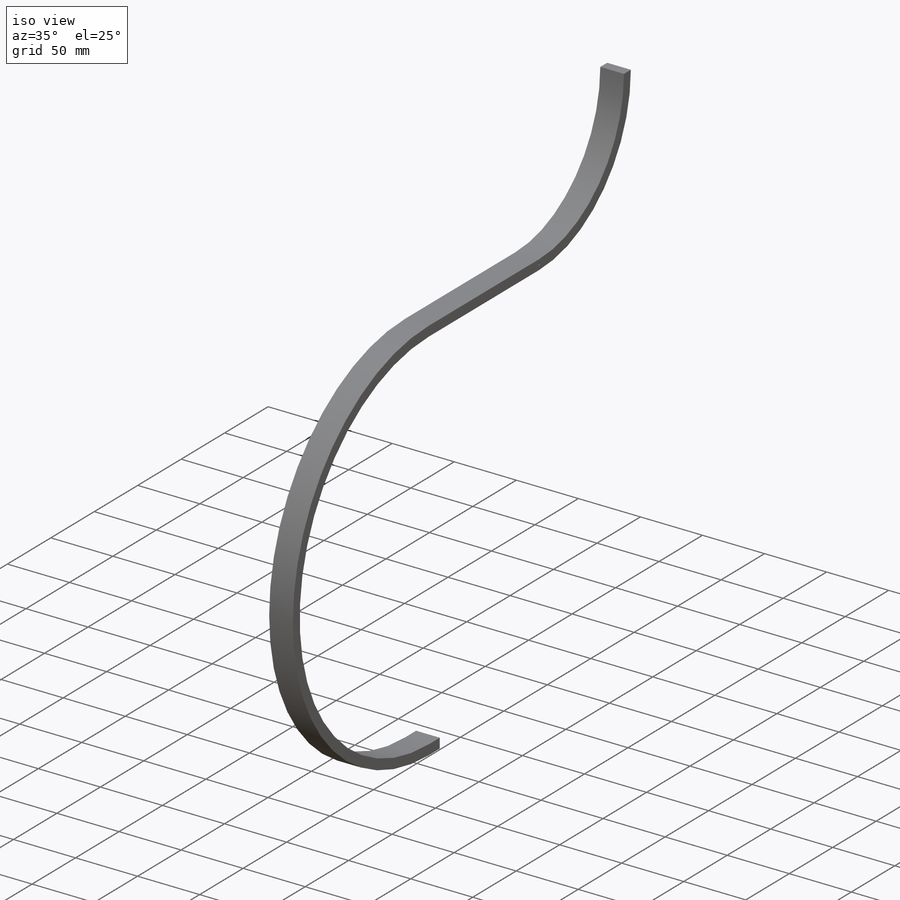
[diagram: iso view]
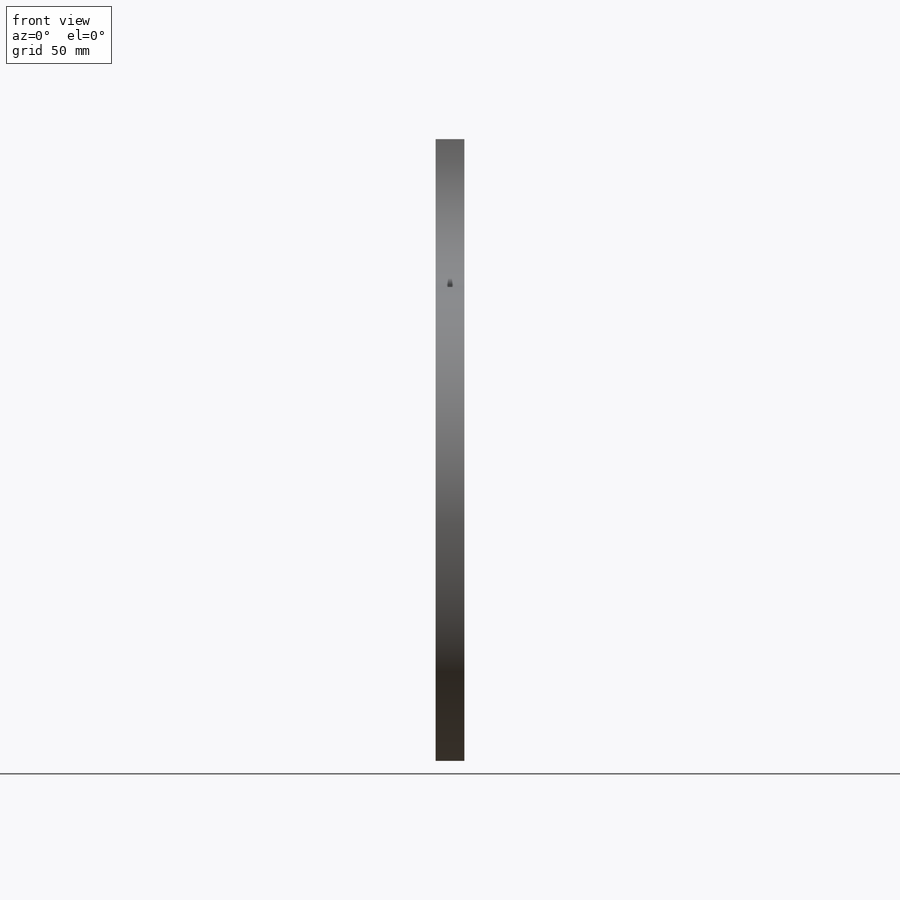
[diagram: front view]
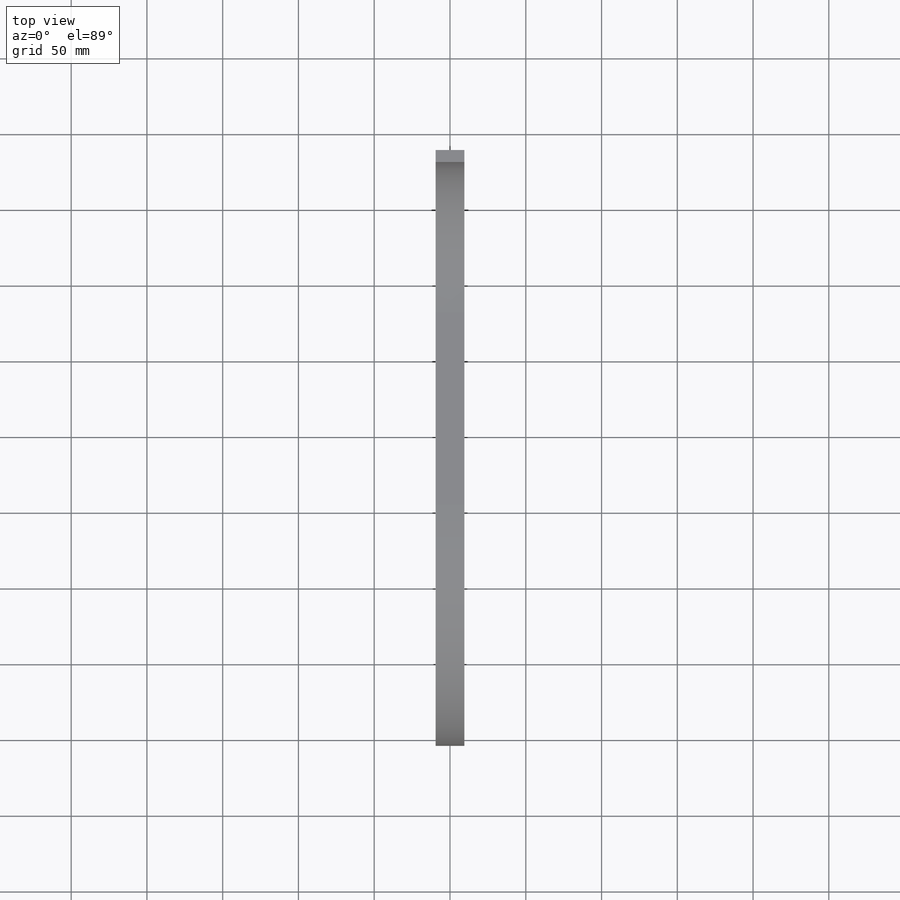
[diagram: top view]
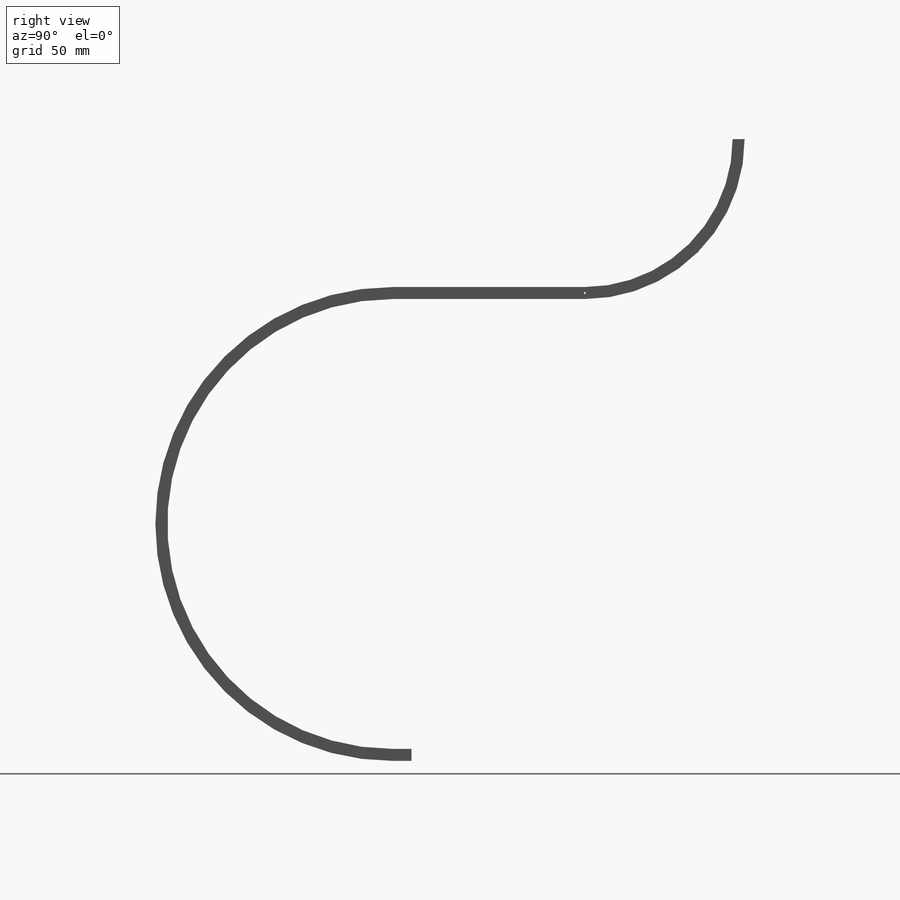
[diagram: right view]
SOLIDWORKS PART (.sldprt)
format: sldprt  version: not decoded by parser v0  size: 236,032 bytes
history: native  units: mm
features: sketch x5, material x1, sweep x1, extrude x1, hole x1 (+16 scaffold rows collapsed)
feature tree (25):
  scaffold x16  (default folders/planes/origin — collapsed)
  material  "Material <not specified>"
  sketch  "Sketch1"  dims[D1=19.05mm D2=7.9248mm]
  sketch  "Sketch2"  dims[c1.D1=304.8mm c1.D2=203.2mm c1.D3=101.6mm c2.D2=127.0mm]
  sweep  "Sweep1"
  sketch  "Sketch3"  dims[D1=12.7mm]
  extrude  "Boss-Extrude1"  [1 undecoded]
  hole  "#56 (0.0465) Diameter Hole1"  Diameter=1.1811mm Depth=19.05mm
  sketch  "Sketch5"
  sketch  "Sketch6"  dims[hole-wizard template sketch: 59 standard entries collapsed; hole parameters kept: c18.Thru Hole Dia.=1.1811mm c18.Thru Hole Depth=19.05mm]
decode coverage: 5 of 8 modeling features carry decoded parameters
note: ~ marks probable driven/reference dimensions
note: 1 parameter value undecoded
note: suppression state not decoded; provenance and decode notes live in map.json
